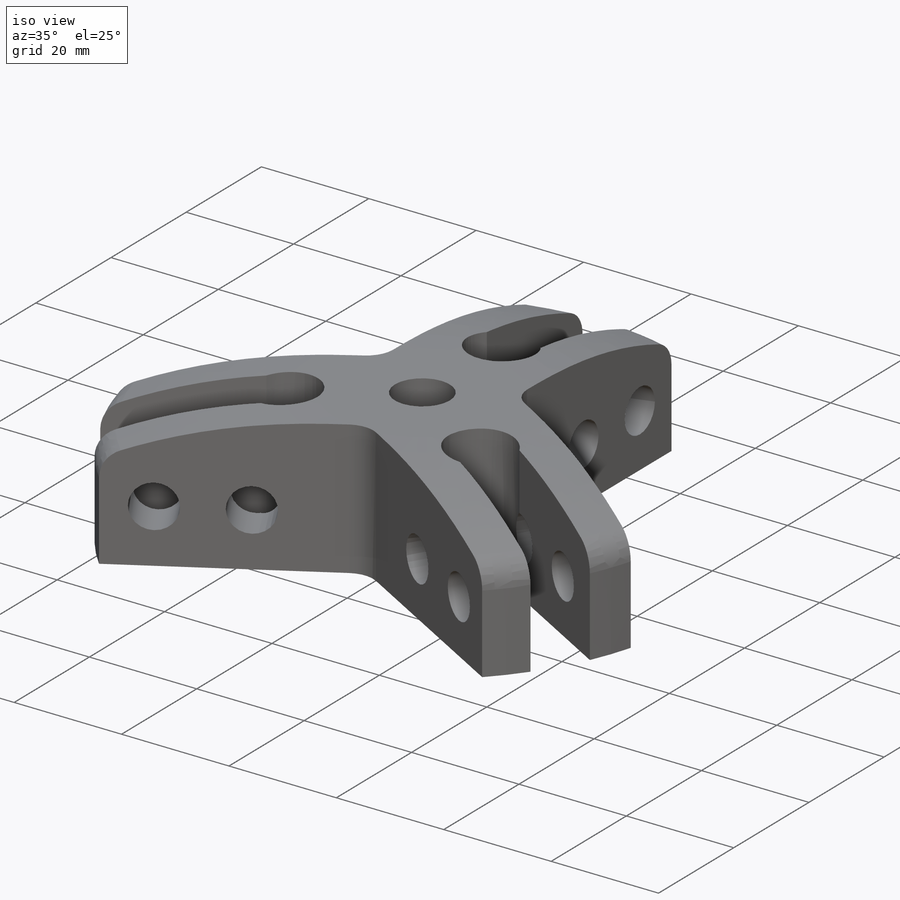
[diagram: iso view]
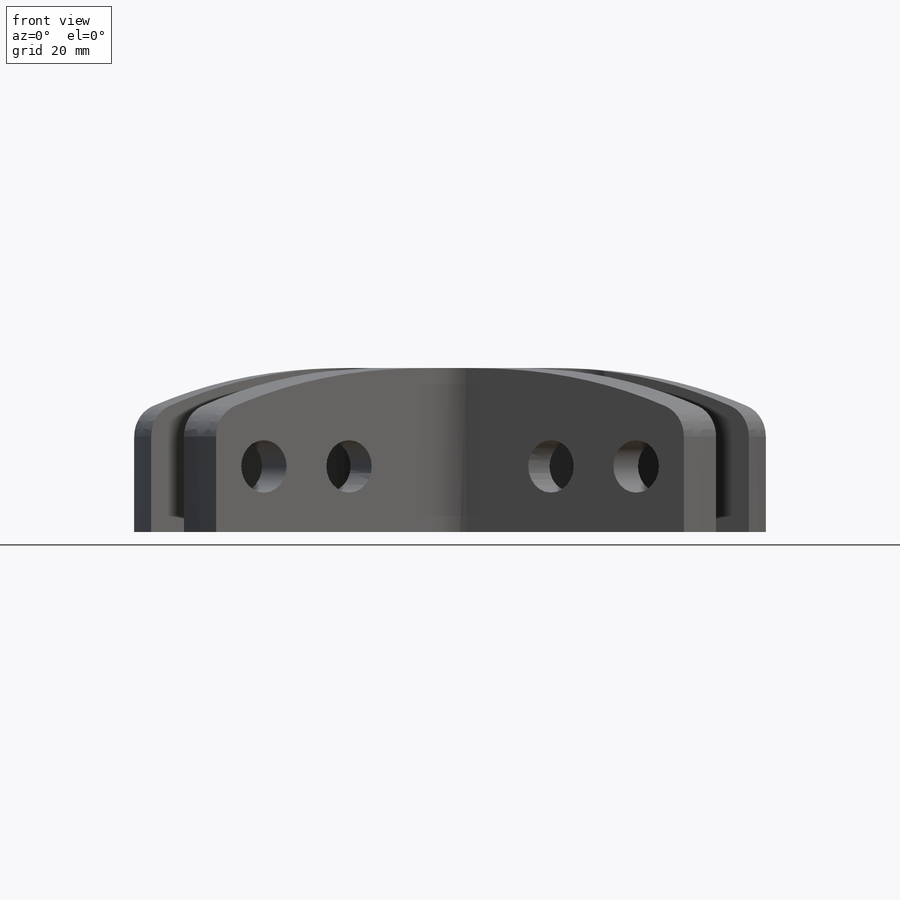
[diagram: front view]
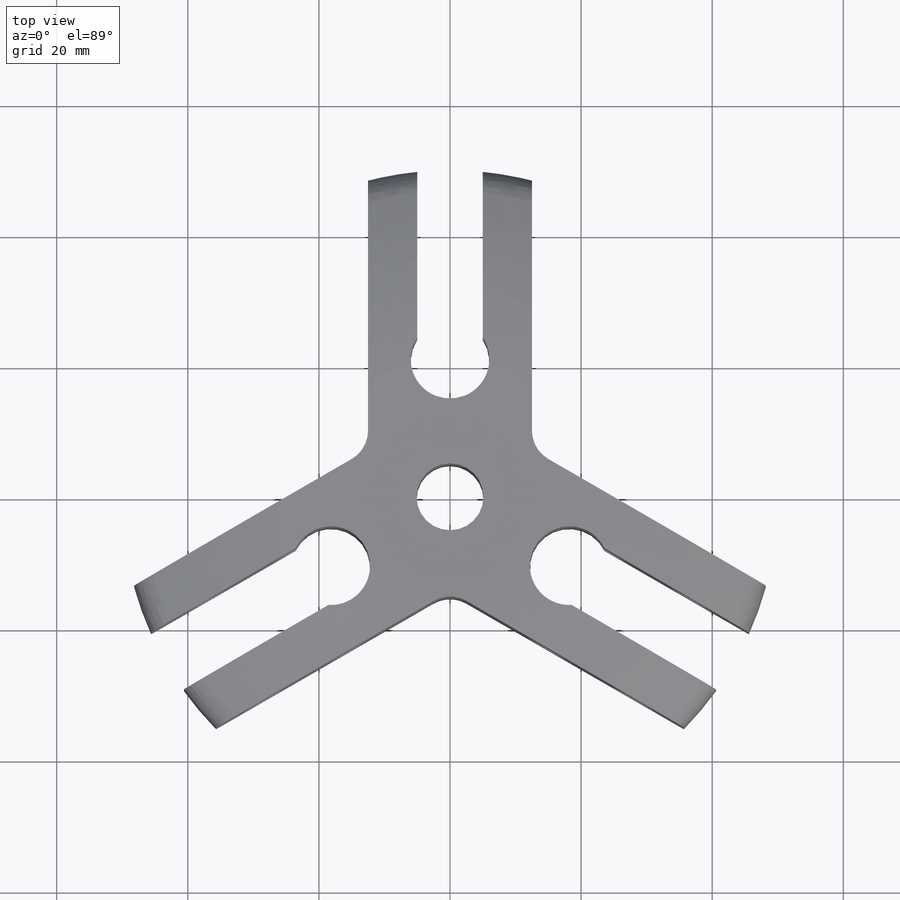
[diagram: top view]
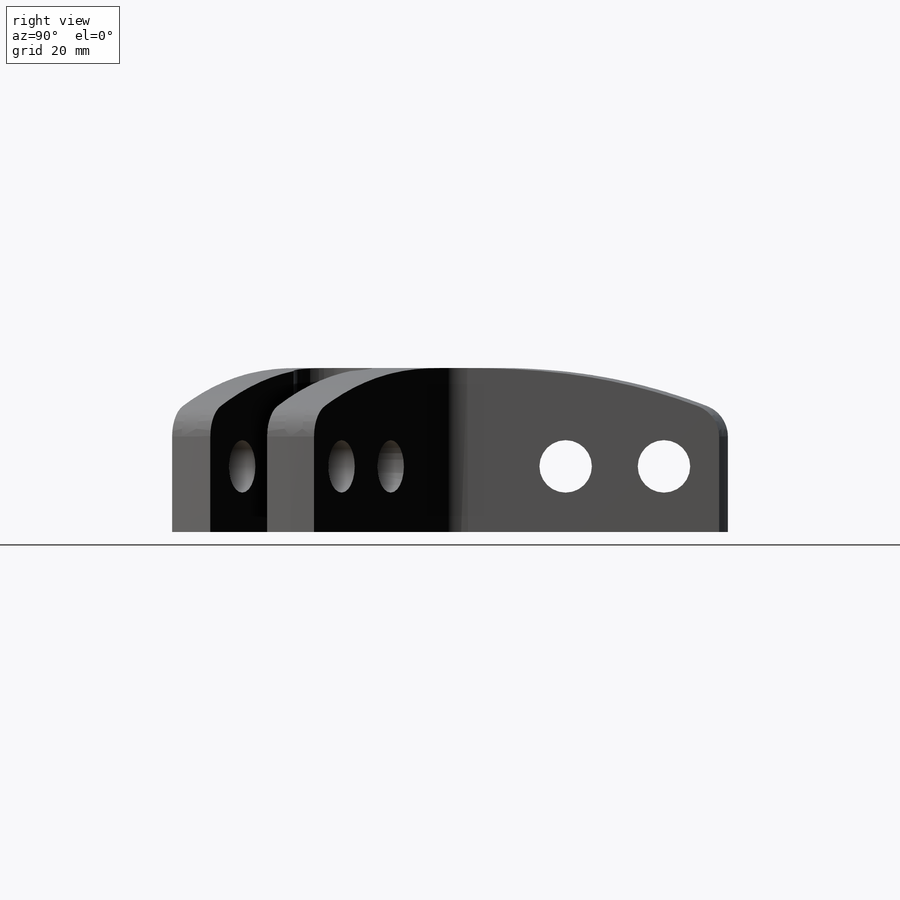
[diagram: right view]
SOLIDWORKS PART (.sldprt)
format: sldprt  version: not decoded by parser v0  size: 393,728 bytes
history: native  units: mm
features: sketch x6, plane x3, cut_extrude x3, pattern_circular x2, material x1, revolve x1, hole x1, thread x1 (+10 scaffold rows collapsed)
feature tree (28):
  scaffold x10  (default folders/planes/origin — collapsed)
  material  "Acero aleado"
  plane  "Alzado"
  plane  "Planta"
  plane  "Vista lateral"
  sketch  "Croquis1"  dims[D4=85.0mm D5=5.0mm D1=50.0mm D2=25.0mm D3=16.0mm]
  revolve  "Revolución1"  Angle=360deg
  sketch  "Croquis2"  dims[c1.D3=5.0mm c1.D1=~72.520379mm c2.D1=120.0deg c2.D2=12.5mm]
  cut_extrude  "Cortar-Extruir2"  [1 undecoded]
  pattern_circular  "MatrizC1"  Count=3 Angle=360deg
  sketch  "Croquis3"  dims[D1=12.0mm D2=21.0mm D3=10.0mm]
  cut_extrude  "Cortar-Extruir4"  [1 undecoded]
  sketch  "Croquis4"  dims[D1=8.0mm D5=~13.449259mm D2=10.0mm D3=25.0mm D4=40.0mm]
  cut_extrude  "Cortar-Extruir5"  [1 undecoded]
  pattern_circular  "MatrizC2"  Count=3 Angle=360deg
  hole  "Taladro roscado M123"  Depth=25mm  [1 undecoded]
  sketch  "Croquis12"
  sketch  "Croquis11"  dims[hole-wizard template sketch: 59 standard entries collapsed; hole parameters kept: c18.Diámetro de perforador para roscar hasta el siguiente=10.2mm c18.Profundidad de perforador para roscar hasta el siguiente=25.0mm]
  thread  "Rosca de taladro5"  Diameter=12mm  [1 undecoded]
decode coverage: 10 of 14 modeling features carry decoded parameters
note: ~ marks probable driven/reference dimensions
note: 5 parameter values undecoded
summary: no parameter record found for 4 features
note: suppression state not decoded; provenance and decode notes live in map.json
